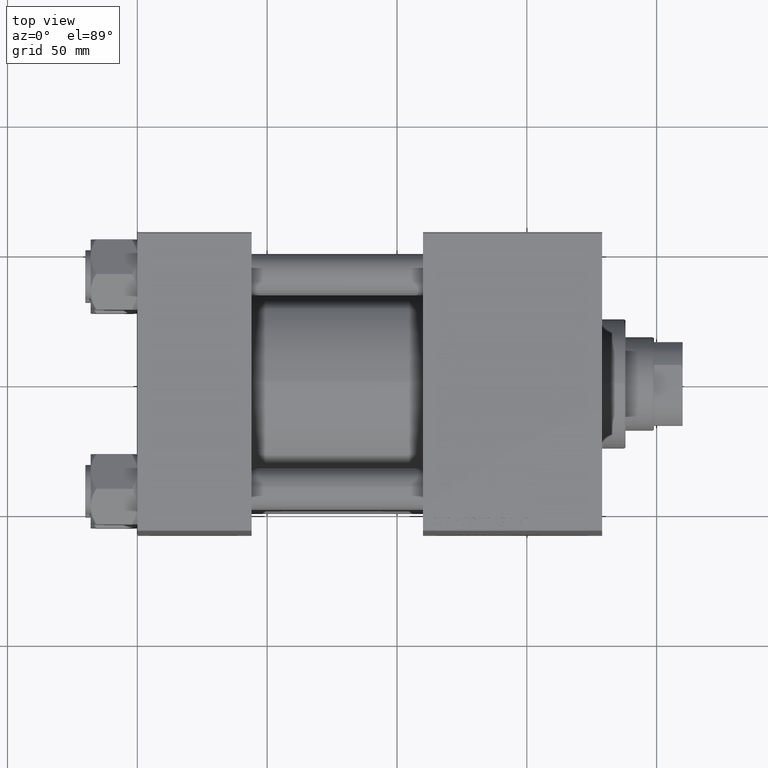
[diagram: clean part render]
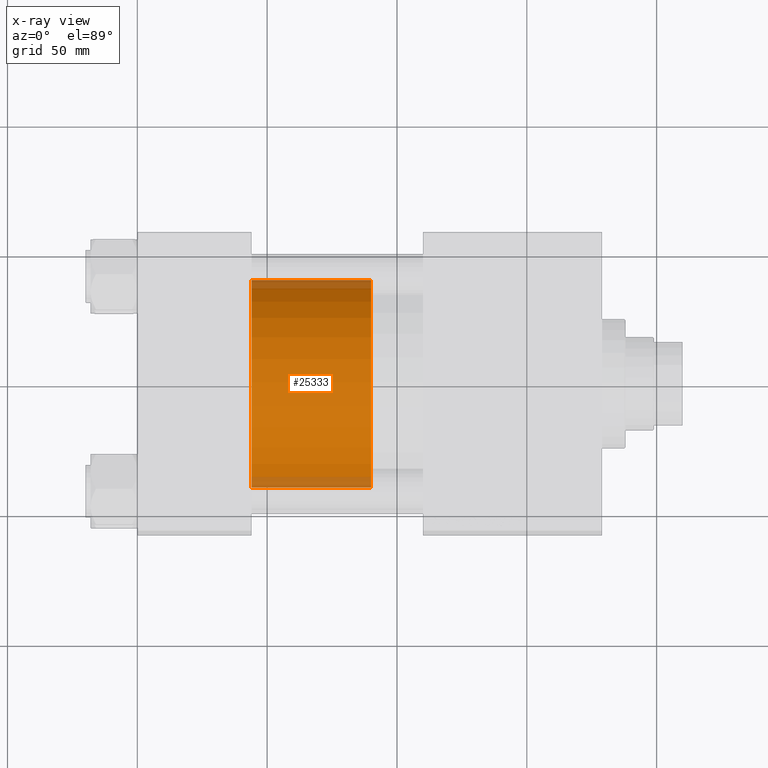
[diagram: x-ray — body ghosted, one internal face saturated and labeled with its STEP entity id]
A machine part, top view, then the same camera in x-ray: the body is ghosted and one INTERNAL B-rep face — a face not visible from any outside direction — is saturated and labeled: STEP entity #25333.
In plain terms, the highlighted cylindrical surface (partial cylindrical patch) has radius 40 mm, axis along (-1, 0, 0).
Its self-contained STEP definition (entity closure, byte-faithful):
#15 = VERTEX_POINT ( 'NONE', #24191 ) ;
#637 = AXIS2_PLACEMENT_3D ( 'NONE', #17570, #20904, #32192 ) ;
#1996 = DIRECTION ( 'NONE',  ( -0.000000000000000000, -0.000000000000000000, -1.000000000000000000 ) ) ;
#2707 = LINE ( 'NONE', #33467, #14836 ) ;
#3081 = ORIENTED_EDGE ( 'NONE', *, *, #33481, .T. ) ;
#6722 = CARTESIAN_POINT ( 'NONE',  ( 40.00000000000000000, 4.898587196589413026E-15, 0.000000000000000000 ) ) ;
#9528 = EDGE_CURVE ( 'NONE', #35056, #25709, #45019, .T. ) ;
#9771 = DIRECTION ( 'NONE',  ( 1.000000000000000000, 0.000000000000000000, 0.000000000000000000 ) ) ;
#10199 = VECTOR ( 'NONE', #1996, 1000.000000000000000 ) ;
#12354 = DIRECTION ( 'NONE',  ( 1.000000000000000000, 0.000000000000000000, 0.000000000000000000 ) ) ;
#12712 = CYLINDRICAL_SURFACE ( 'NONE', #637, 40.00000000000000000 ) ;
#13491 = VERTEX_POINT ( 'NONE', #20973 ) ;
#13621 = CARTESIAN_POINT ( 'NONE',  ( 0.000000000000000000, 0.000000000000000000, 46.00000000000000000 ) ) ;
#13999 = EDGE_CURVE ( 'NONE', #15, #25709, #37170, .T. ) ;
#14043 = CARTESIAN_POINT ( 'NONE',  ( 40.00000000000000000, 4.898587196589413026E-15, 46.00000000000000000 ) ) ;
#14836 = VECTOR ( 'NONE', #37282, 1000.000000000000000 ) ;
#15103 = AXIS2_PLACEMENT_3D ( 'NONE', #39498, #19813, #12354 ) ;
#15592 = CIRCLE ( 'NONE', #40086, 40.00000000000000000 ) ;
#15856 = ORIENTED_EDGE ( 'NONE', *, *, #9528, .F. ) ;
#17570 = CARTESIAN_POINT ( 'NONE',  ( 0.000000000000000000, 0.000000000000000000, 46.00000000000000000 ) ) ;
#19813 = DIRECTION ( 'NONE',  ( 0.000000000000000000, 0.000000000000000000, 1.000000000000000000 ) ) ;
#20904 = DIRECTION ( 'NONE',  ( -0.000000000000000000, -0.000000000000000000, -1.000000000000000000 ) ) ;
#20973 = CARTESIAN_POINT ( 'NONE',  ( -40.00000000000000000, 0.000000000000000000, 46.00000000000000000 ) ) ;
#24191 = CARTESIAN_POINT ( 'NONE',  ( -40.00000000000000000, 0.000000000000000000, 0.000000000000000000 ) ) ;
#25333 = ADVANCED_FACE ( 'NONE', ( #48516 ), #12712, .T. ) ;
#25709 = VERTEX_POINT ( 'NONE', #6722 ) ;
#25910 = DIRECTION ( 'NONE',  ( 0.000000000000000000, 0.000000000000000000, 1.000000000000000000 ) ) ;
#27177 = CARTESIAN_POINT ( 'NONE',  ( 40.00000000000000000, 4.898587196589413026E-15, 46.00000000000000000 ) ) ;
#32192 = DIRECTION ( 'NONE',  ( -1.000000000000000000, 0.000000000000000000, 0.000000000000000000 ) ) ;
#33467 = CARTESIAN_POINT ( 'NONE',  ( -40.00000000000000000, 0.000000000000000000, 46.00000000000000000 ) ) ;
#33481 = EDGE_CURVE ( 'NONE', #13491, #15, #2707, .T. ) ;
#35056 = VERTEX_POINT ( 'NONE', #27177 ) ;
#36466 = ORIENTED_EDGE ( 'NONE', *, *, #44806, .F. ) ;
#37170 = CIRCLE ( 'NONE', #15103, 40.00000000000000000 ) ;
#37282 = DIRECTION ( 'NONE',  ( -0.000000000000000000, -0.000000000000000000, -1.000000000000000000 ) ) ;
#39498 = CARTESIAN_POINT ( 'NONE',  ( 0.000000000000000000, 0.000000000000000000, 0.000000000000000000 ) ) ;
#40086 = AXIS2_PLACEMENT_3D ( 'NONE', #13621, #25910, #9771 ) ;
#41435 = EDGE_LOOP ( 'NONE', ( #15856, #36466, #3081, #47614 ) ) ;
#44806 = EDGE_CURVE ( 'NONE', #13491, #35056, #15592, .T. ) ;
#45019 = LINE ( 'NONE', #14043, #10199 ) ;
#47614 = ORIENTED_EDGE ( 'NONE', *, *, #13999, .T. ) ;
#48516 = FACE_OUTER_BOUND ( 'NONE', #41435, .T. ) ;